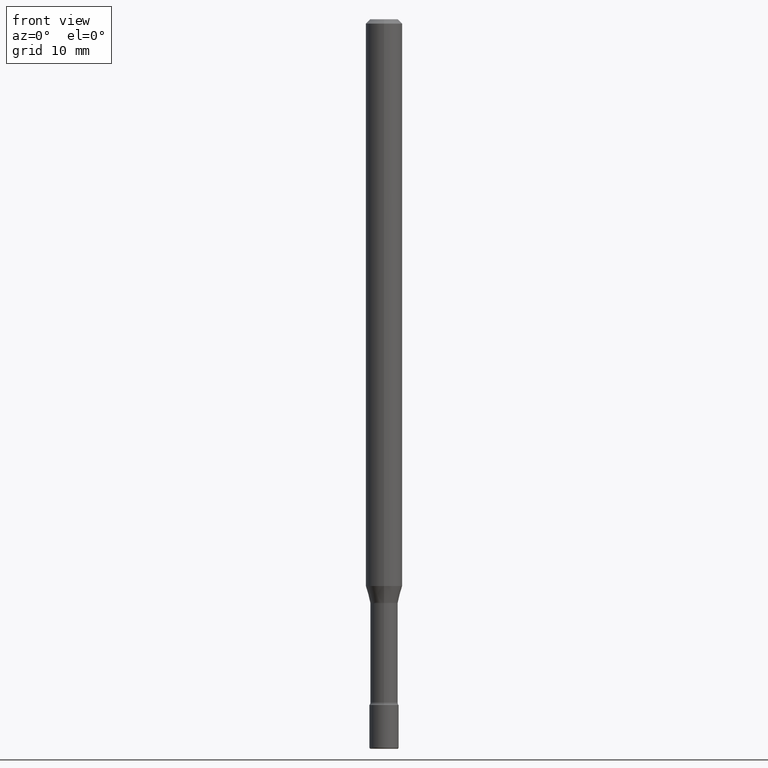
[diagram: clean part render]
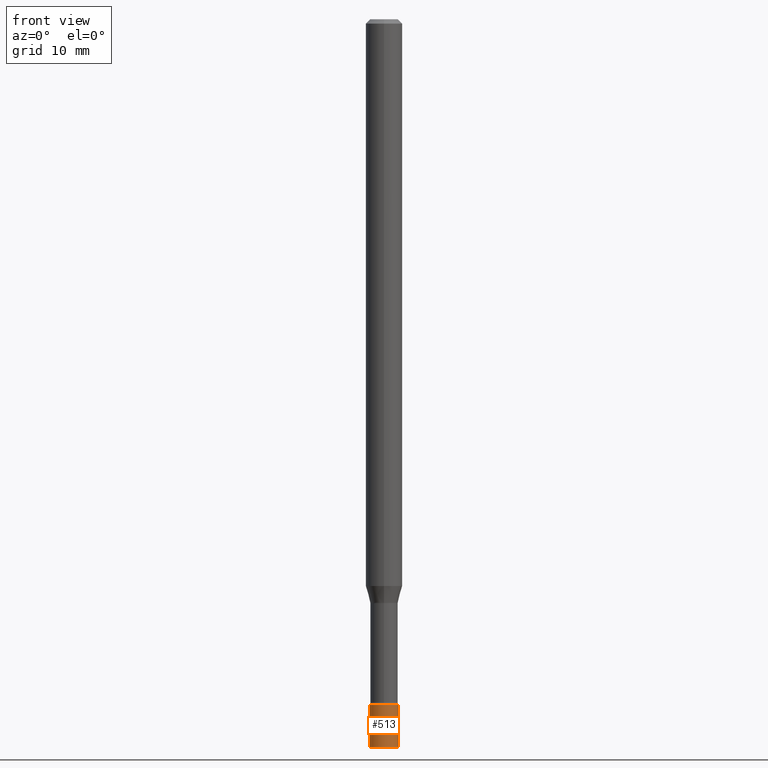
[diagram: same view with one face highlighted and labeled with its STEP entity id]
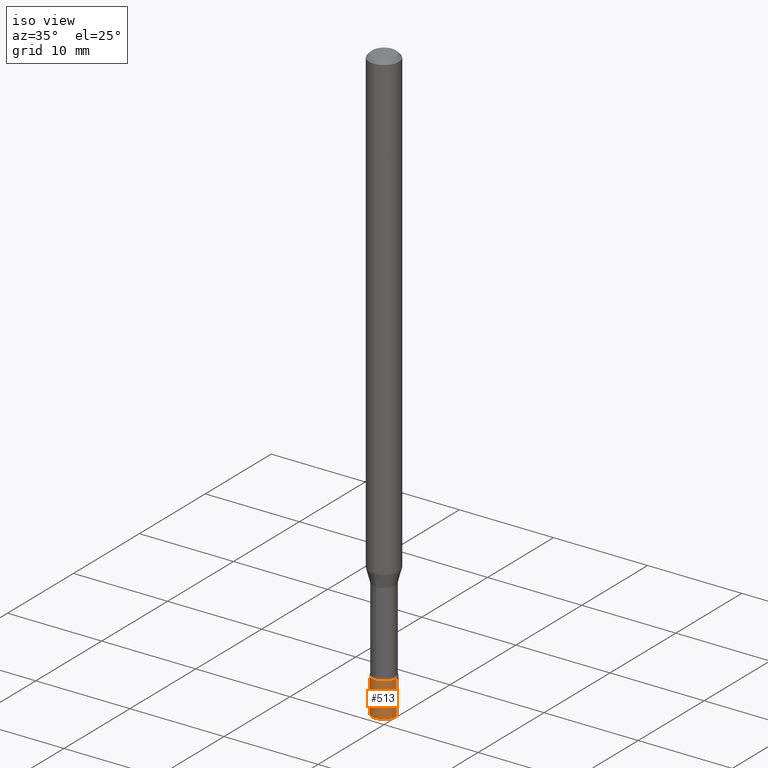
[diagram: same view with one face highlighted and labeled with its STEP entity id]
A machine part, front view. The second image highlights one B-rep face of the part: STEP entity #513.
A second angle (iso view) of the same face is appended — the face is thin or edge-on in the first view.
In plain terms, the highlighted cylindrical surface (edge-blend (fillet) strip) has radius 1.27 mm, axis along (-0, 0, 1).
Its self-contained STEP definition (entity closure, byte-faithful):
#2 = CARTESIAN_POINT ( 'NONE',  ( 0.05000000000000000278, -3.491481338843133848E-16, 2.438088387897968247E-30 ) ) ;
#28 = EDGE_CURVE ( 'NONE', #142, #248, #356, .T. ) ;
#36 = DIRECTION ( 'NONE',  ( -2.445468806185136597E-29, 3.491481338843145583E-15, 1.000000000000000000 ) ) ;
#39 = EDGE_CURVE ( 'NONE', #84, #248, #235, .T. ) ;
#84 = VERTEX_POINT ( 'NONE', #152 ) ;
#93 = DIRECTION ( 'NONE',  ( 1.000000000000000000, -6.982962677686254878E-15, 0.000000000000000000 ) ) ;
#97 = CARTESIAN_POINT ( 'NONE',  ( 6.101444671431915719E-29, -8.711245940413648329E-15, -2.495000000000000107 ) ) ;
#116 = AXIS2_PLACEMENT_3D ( 'NONE', #97, #527, #93 ) ;
#134 = VECTOR ( 'NONE', #228, 39.37007874015748143 ) ;
#142 = VERTEX_POINT ( 'NONE', #454 ) ;
#143 = DIRECTION ( 'NONE',  ( -2.445468806185136877E-29, 3.491481338843145188E-15, 1.000000000000000000 ) ) ;
#152 = CARTESIAN_POINT ( 'NONE',  ( -0.05000000000000000278, -8.102842175467469648E-15, -2.350000000000000089 ) ) ;
#184 = CARTESIAN_POINT ( 'NONE',  ( -0.05000000000000000278, 3.552713678800501127E-16, -2.459467545127453311E-30 ) ) ;
#223 = DIRECTION ( 'NONE',  ( 1.000000000000000000, -6.982962677686274599E-15, 0.000000000000000000 ) ) ;
#228 = DIRECTION ( 'NONE',  ( -2.445468806185136877E-29, 3.491481338843145188E-15, 1.000000000000000000 ) ) ;
#232 = DIRECTION ( 'NONE',  ( -2.445468806185136597E-29, 3.491481338843145583E-15, 1.000000000000000000 ) ) ;
#235 = CIRCLE ( 'NONE', #514, 0.05000000000000000278 ) ;
#248 = VERTEX_POINT ( 'NONE', #263 ) ;
#263 = CARTESIAN_POINT ( 'NONE',  ( 0.05000000000000000278, -8.554129280165706697E-15, -2.350000000000000089 ) ) ;
#272 = ORIENTED_EDGE ( 'NONE', *, *, #371, .T. ) ;
#273 = CARTESIAN_POINT ( 'NONE',  ( -0.04999999999999989175, -8.355974572533597921E-15, -2.495000000000000107 ) ) ;
#278 = ORIENTED_EDGE ( 'NONE', *, *, #28, .T. ) ;
#324 = FACE_OUTER_BOUND ( 'NONE', #503, .T. ) ;
#339 = ORIENTED_EDGE ( 'NONE', *, *, #498, .F. ) ;
#352 = CIRCLE ( 'NONE', #116, 0.05000000000000000278 ) ;
#355 = LINE ( 'NONE', #184, #487 ) ;
#356 = LINE ( 'NONE', #2, #134 ) ;
#357 = DIRECTION ( 'NONE',  ( 1.000000000000000000, -6.982962677686267499E-15, 4.876176775795936353E-29 ) ) ;
#371 = EDGE_CURVE ( 'NONE', #449, #142, #352, .T. ) ;
#439 = CARTESIAN_POINT ( 'NONE',  ( 5.746851694535070554E-29, -8.204981146281391784E-15, -2.350000000000000089 ) ) ;
#443 = CARTESIAN_POINT ( 'NONE',  ( 0.000000000000000000, 0.000000000000000000, 0.000000000000000000 ) ) ;
#449 = VERTEX_POINT ( 'NONE', #273 ) ;
#454 = CARTESIAN_POINT ( 'NONE',  ( 0.04999999999999989175, -9.060394074297958509E-15, -2.495000000000000107 ) ) ;
#483 = CYLINDRICAL_SURFACE ( 'NONE', #500, 0.05000000000000000278 ) ;
#487 = VECTOR ( 'NONE', #143, 39.37007874015748143 ) ;
#489 = ORIENTED_EDGE ( 'NONE', *, *, #39, .F. ) ;
#498 = EDGE_CURVE ( 'NONE', #449, #84, #355, .T. ) ;
#500 = AXIS2_PLACEMENT_3D ( 'NONE', #443, #232, #357 ) ;
#503 = EDGE_LOOP ( 'NONE', ( #339, #272, #278, #489 ) ) ;
#513 = ADVANCED_FACE ( 'NONE', ( #324 ), #483, .T. ) ;
#514 = AXIS2_PLACEMENT_3D ( 'NONE', #439, #36, #223 ) ;
#527 = DIRECTION ( 'NONE',  ( -2.445468806185136597E-29, 3.491481338843145583E-15, 1.000000000000000000 ) ) ;